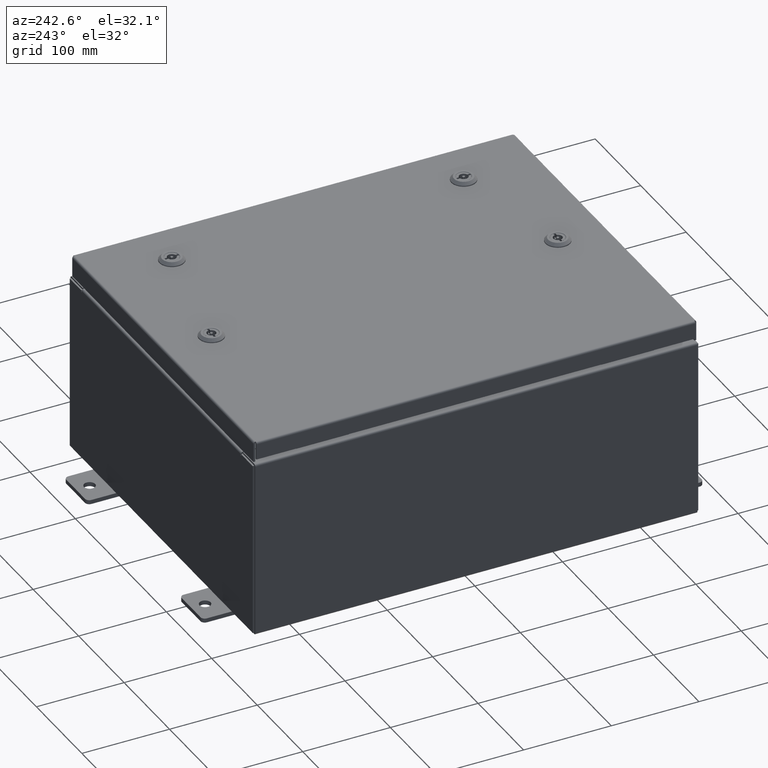
[diagram: clean part render]
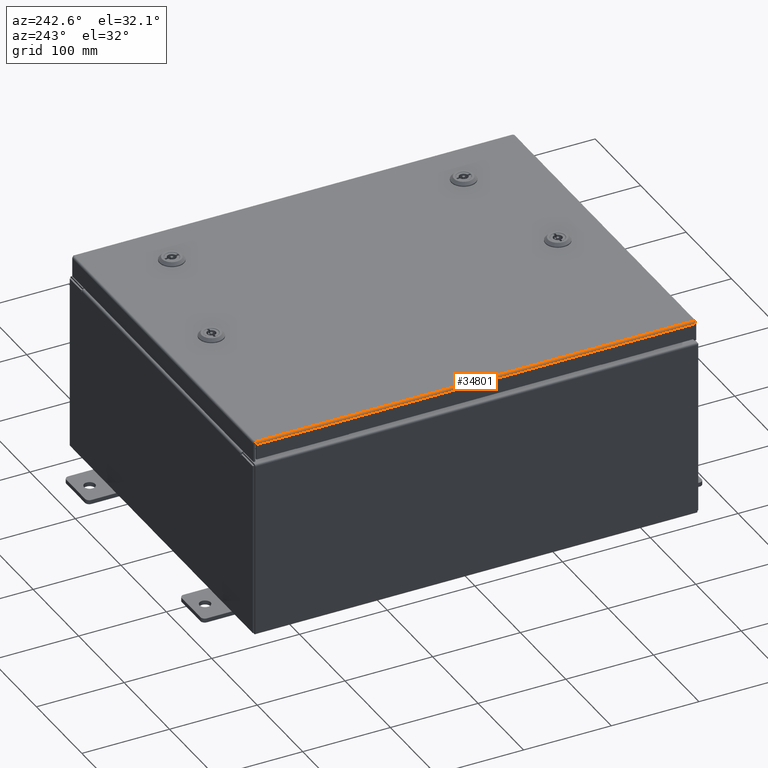
[diagram: same view with one face highlighted and labeled with its STEP entity id]
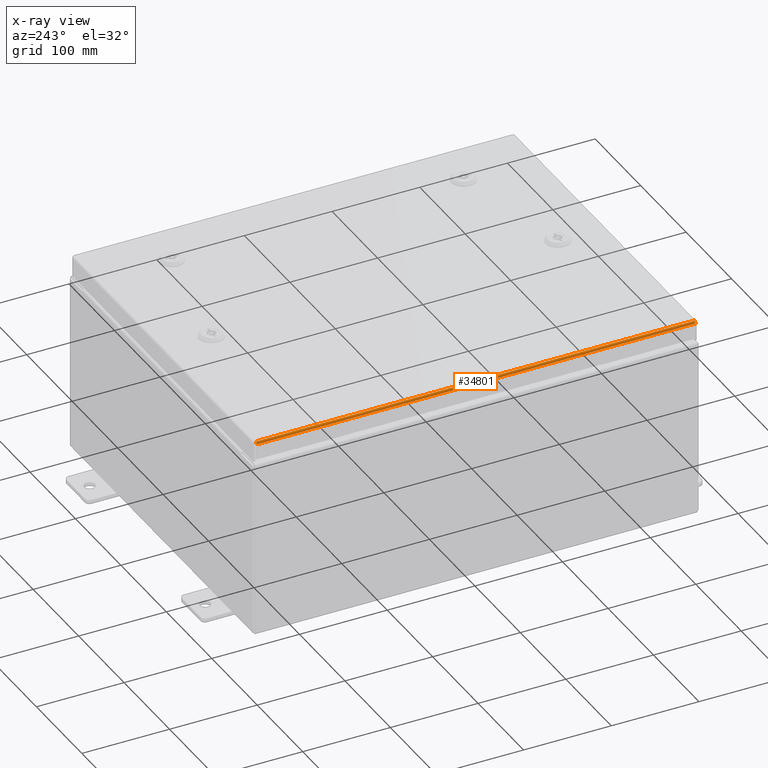
[diagram: x-ray of the same camera — body ghosted, the highlighted face saturated]
A machine part, auxiliary view. The second image highlights one B-rep face of the part: STEP entity #34801.
The next image is the same camera in x-ray: the body ghosted, the highlighted face saturated — about 0% of this face is hidden behind the body in this view.
In plain terms, the highlighted cylindrical surface (edge-blend (fillet) strip) has radius 2.2276 mm, axis along (0, 1, 0).
Its self-contained STEP definition (entity closure, byte-faithful):
#684 = EDGE_LOOP ( 'NONE', ( #24585, #11579, #11737, #59412 ) ) ;
#1203 = FACE_OUTER_BOUND ( 'NONE', #684, .T. ) ;
#1413 = CARTESIAN_POINT ( 'NONE',  ( -7.903695747341800800, 9.849324110156775400, -0.01756921792167976500 ) ) ;
#1508 = CARTESIAN_POINT ( 'NONE',  ( -7.935217403743813200, -9.848848220313561400, -0.06474471054169118900 ) ) ;
#2140 = VERTEX_POINT ( 'NONE', #8486 ) ;
#2647 = VERTEX_POINT ( 'NONE', #18539 ) ;
#3457 = DIRECTION ( 'NONE',  ( -1.000000000000000000, 0.0000000000000000000, 3.114992011019675100E-015 ) ) ;
#4126 = AXIS2_PLACEMENT_3D ( 'NONE', #8352, #52198, #3457 ) ;
#6097 = CARTESIAN_POINT ( 'NONE',  ( -7.937500000000000000, 9.848657864376269400, -0.08770000000000004200 ) ) ;
#6307 = CARTESIAN_POINT ( 'NONE',  ( -7.872755289458309500, 9.849609644062709900, -0.002282596256188923800 ) ) ;
#6402 = CARTESIAN_POINT ( 'NONE',  ( -7.937500000000000000, -9.848657864376273000, -0.08770000000000007000 ) ) ;
#7507 = CARTESIAN_POINT ( 'NONE',  ( -7.937500000000000000, 9.848657864376269400, -0.08770000000000004200 ) ) ;
#8352 = CARTESIAN_POINT ( 'NONE',  ( -7.849800000000000100, 9.849799999999996600, -0.08770000000000030500 ) ) ;
#8486 = CARTESIAN_POINT ( 'NONE',  ( -7.849800000000000100, -9.849800000000001900, -2.048885995248197400E-016 ) ) ;
#10284 = DIRECTION ( 'NONE',  ( 3.753401345910882400E-031, -1.000000000000000000, -1.106432229392147200E-045 ) ) ;
#10683 = CARTESIAN_POINT ( 'NONE',  ( -7.861279903154991400, -9.849704822031359400, -2.043883832173860400E-016 ) ) ;
#11202 = CARTESIAN_POINT ( 'NONE',  ( -7.849800000000000100, 9.849799999999996600, -2.048885995248197400E-016 ) ) ;
#11579 = ORIENTED_EDGE ( 'NONE', *, *, #48807, .F. ) ;
#11737 = ORIENTED_EDGE ( 'NONE', *, *, #49413, .T. ) ;
#13233 = EDGE_CURVE ( 'NONE', #30645, #2140, #46257, .T. ) ;
#14057 = EDGE_CURVE ( 'NONE', #2140, #2647, #28313, .T. ) ;
#18539 = CARTESIAN_POINT ( 'NONE',  ( -7.937500000000000000, -9.848657864376273000, -0.08770000000000007000 ) ) ;
#20352 = VECTOR ( 'NONE', #59933, 39.37007874015748100 ) ;
#20763 = CARTESIAN_POINT ( 'NONE',  ( -7.937499999999999100, 9.848753042344910100, -0.07622009684500732900 ) ) ;
#20855 = CARTESIAN_POINT ( 'NONE',  ( -7.872755289458310400, -9.849609644062715200, -0.002282596256188924700 ) ) ;
#23768 = VERTEX_POINT ( 'NONE', #7507 ) ;
#24585 = ORIENTED_EDGE ( 'NONE', *, *, #13233, .F. ) ;
#25534 = CARTESIAN_POINT ( 'NONE',  ( -7.849800000000000100, -9.849800000000001900, -2.048885995248197400E-016 ) ) ;
#25645 = CARTESIAN_POINT ( 'NONE',  ( -7.935217403743812300, 9.848848220313559700, -0.06474471054169118900 ) ) ;
#25739 = CARTESIAN_POINT ( 'NONE',  ( -7.903695747341801700, -9.849324110156782600, -0.01756921792167976500 ) ) ;
#27327 = B_SPLINE_CURVE_WITH_KNOTS ( 'NONE', 3,
 ( #6097, #20763, #25645, #59758, #30559, #1413, #35484, #6307, #40371, #11202 ),
 .UNSPECIFIED., .F., .F.,
 ( 4, 2, 2, 2, 4 ),
 ( 0.0000000000000000000, 0.2500000000000000000, 0.5000000000000000000, 0.7500000000000000000, 1.000000000000000000 ),
 .UNSPECIFIED. ) ;
#28313 = B_SPLINE_CURVE_WITH_KNOTS ( 'NONE', 3,
 ( #25534, #10683, #20855, #54951, #25739, #59855, #30659, #1508, #35582, #6402 ),
 .UNSPECIFIED., .F., .F.,
 ( 4, 2, 2, 2, 4 ),
 ( 0.0000000000000000000, 0.2500000000000000000, 0.5000000000000000000, 0.7500000000000000000, 1.000000000000000000 ),
 .UNSPECIFIED. ) ;
#30559 = CARTESIAN_POINT ( 'NONE',  ( -7.919930782078321100, 9.849133754219488800, -0.03380425265820009200 ) ) ;
#30645 = VERTEX_POINT ( 'NONE', #33314 ) ;
#30659 = CARTESIAN_POINT ( 'NONE',  ( -7.926431066258668800, -9.849038576250846300, -0.04353261542147222900 ) ) ;
#33314 = CARTESIAN_POINT ( 'NONE',  ( -7.849800000000000100, 9.849799999999996600, -2.048885995248197400E-016 ) ) ;
#34801 = ADVANCED_FACE ( 'NONE', ( #1203 ), #62904, .T. ) ;
#35479 = LINE ( 'NONE', #39466, #61374 ) ;
#35484 = CARTESIAN_POINT ( 'NONE',  ( -7.893967384578529000, 9.849419288125421400, -0.01106893374133176100 ) ) ;
#35582 = CARTESIAN_POINT ( 'NONE',  ( -7.937500000000000000, -9.848753042344915400, -0.07622009684500735700 ) ) ;
#39466 = CARTESIAN_POINT ( 'NONE',  ( -7.937500000000000000, -9.937500000000001800, -0.08770000000000004200 ) ) ;
#40371 = CARTESIAN_POINT ( 'NONE',  ( -7.861279903154993100, 9.849704822031354100, -2.037547758946368100E-016 ) ) ;
#46257 = LINE ( 'NONE', #55029, #20352 ) ;
#48807 = EDGE_CURVE ( 'NONE', #23768, #30645, #27327, .T. ) ;
#49413 = EDGE_CURVE ( 'NONE', #23768, #2647, #35479, .T. ) ;
#52198 = DIRECTION ( 'NONE',  ( -0.0000000000000000000, 1.000000000000000000, -0.0000000000000000000 ) ) ;
#54951 = CARTESIAN_POINT ( 'NONE',  ( -7.893967384578527200, -9.849419288125425000, -0.01106893374133176100 ) ) ;
#55029 = CARTESIAN_POINT ( 'NONE',  ( -7.849800000000000100, 9.849799999999996600, -2.048885995248197400E-016 ) ) ;
#59412 = ORIENTED_EDGE ( 'NONE', *, *, #14057, .F. ) ;
#59758 = CARTESIAN_POINT ( 'NONE',  ( -7.926431066258667900, 9.849038576250844600, -0.04353261542147222200 ) ) ;
#59855 = CARTESIAN_POINT ( 'NONE',  ( -7.919930782078321100, -9.849133754219494100, -0.03380425265820009900 ) ) ;
#59933 = DIRECTION ( 'NONE',  ( 0.0000000000000000000, -1.000000000000000000, 0.0000000000000000000 ) ) ;
#61374 = VECTOR ( 'NONE', #10284, 39.37007874015748100 ) ;
#62904 = CYLINDRICAL_SURFACE ( 'NONE', #4126, 0.08770000000000026400 ) ;